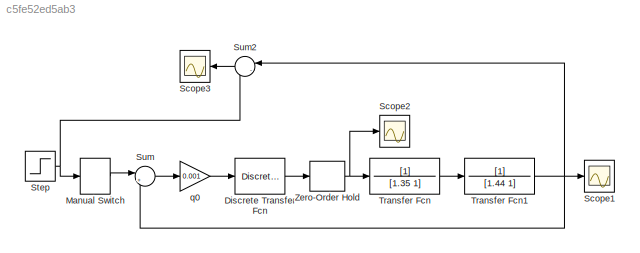
MODEL slx_c5fe52ed5ab3
KIND model
CONFIG AbsTol = auto
CONFIG EnableMultiTasking = off
CONFIG FixedStep = 1e-4
CONFIG MaxStep = auto
CONFIG MinStep = auto
CONFIG RelTol = 1e-3
CONFIG SampleTimeConstraint = Unconstrained
CONFIG SolverName = FixedStepAuto
CONFIG StartTime = 0.0
CONFIG StopTime = 70.0
BLOCK [DiscreteTransferFcn] Discrete Transfer Fcn
  Denominator = [1  -1 0]
  InputPortMap = u0
  Numerator = [1  -exp(-1.35/4/1.35)-exp(-1.35/4/1.44) exp(-1.35/4/1.35)*exp(-1.35/4/1.44)]
BLOCK [ManualSwitch] Manual Switch
BLOCK [Scope] Scope1
  Floating = off
  NumInputPorts = 1
  ScopeSpecificationString = Simulink.scopes.TimeScopeBlockCfg('CurrentConfiguration', extmgr.ConfigurationSet(extmgr.Configuration('Core','General UI',true,'FigureColor',[1 1 1]),extmgr.Configuration('Core','Source UI',true),extmgr.Configuration('Sources','WiredSimulink',true,'DataLoggingVariableName','ScopeData1'),extmgr.Configuration('Visuals','Time Domain',true,'SerializedDisplays',{struct('MinYLimReal','-0.17513','MaxYLi...<+2385ch>
BLOCK [Scope] Scope2
  Floating = off
  NumInputPorts = 1
  ScopeSpecificationString = Simulink.scopes.TimeScopeBlockCfg('CurrentConfiguration', extmgr.ConfigurationSet(extmgr.Configuration('Core','General UI',true,'FigureColor',[1 1 1]),extmgr.Configuration('Core','Source UI',true),extmgr.Configuration('Sources','WiredSimulink',true,'DataLoggingVariableName','ScopeData2'),extmgr.Configuration('Visuals','Time Domain',true,'SerializedDisplays',{struct('MinYLimReal','-0.19808','MaxYLi...<+2401ch>
BLOCK [Scope] Scope3
  Floating = off
  NameLocation = top
  NumInputPorts = 1
  ScopeSpecificationString = Simulink.scopes.TimeScopeBlockCfg('CurrentConfiguration', extmgr.ConfigurationSet(extmgr.Configuration('Core','General UI',true,'FigureColor',[1 1 1]),extmgr.Configuration('Core','Source UI',true),extmgr.Configuration('Sources','WiredSimulink',true,'DataLoggingVariableName','ScopeData1'),extmgr.Configuration('Visuals','Time Domain',true,'SerializedDisplays',{struct('MinYLimReal','-0.57614','MaxYLi...<+2397ch>
BLOCK [Step] Step
  Before = 1
  SampleTime = 0
BLOCK [Sum] Sum
  Inputs = |+-
BLOCK [Sum] Sum2
  Inputs = |-+
  NameLocation = top
BLOCK [TransferFcn] Transfer Fcn
  Denominator = [1.35 1]
BLOCK [TransferFcn] Transfer Fcn1
  Denominator = [1.44 1]
BLOCK [ZeroOrderHold] Zero-Order Hold
  SampleTime = 1.35/4
BLOCK [Gain] q0
  Gain = 0.001
LINE Discrete Transfer Fcn:1 -> Zero-Order Hold:1
LINE Manual Switch:1 -> Sum:1
NET Step:1 -> Manual Switch:1, Sum2:2
LINE Sum2:1 -> Scope3:1
LINE Sum:1 -> q0:1
NET Transfer Fcn1:1 -> Scope1:1, Sum2:1, Sum:2
LINE Transfer Fcn:1 -> Transfer Fcn1:1
NET Zero-Order Hold:1 -> Scope2:1, Transfer Fcn:1
LINE q0:1 -> Discrete Transfer Fcn:1
note: NET lines group one-source signal fan-out (src -> all destinations, sorted); 1:1 wires keep LINE
